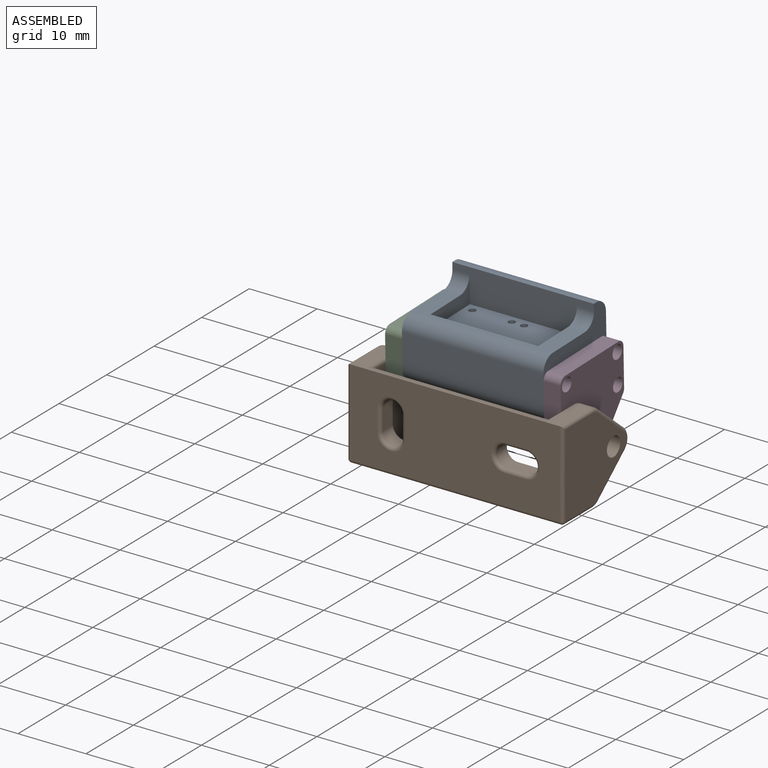
[diagram: assembled view]
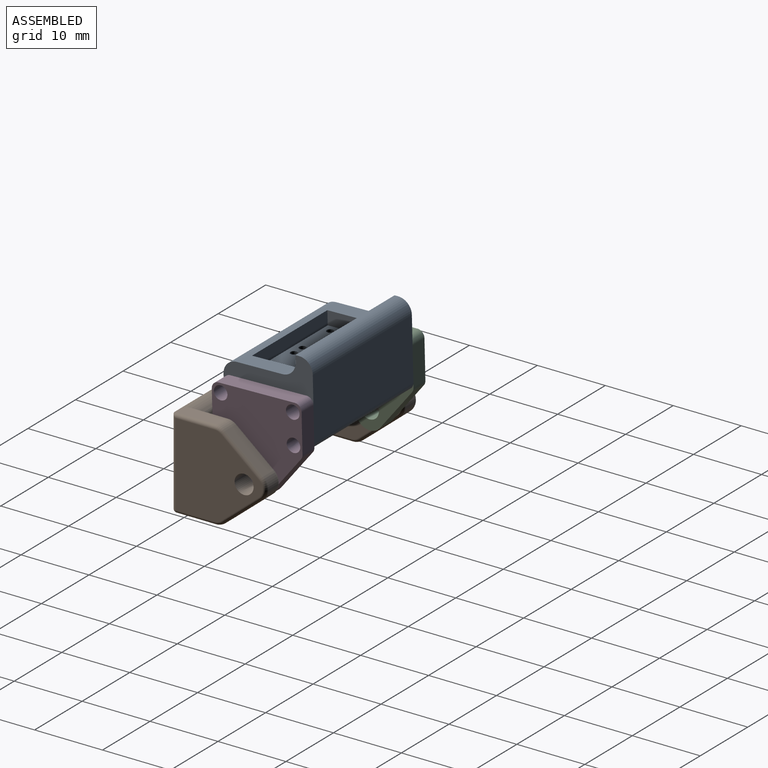
[diagram: assembled view, second angle]
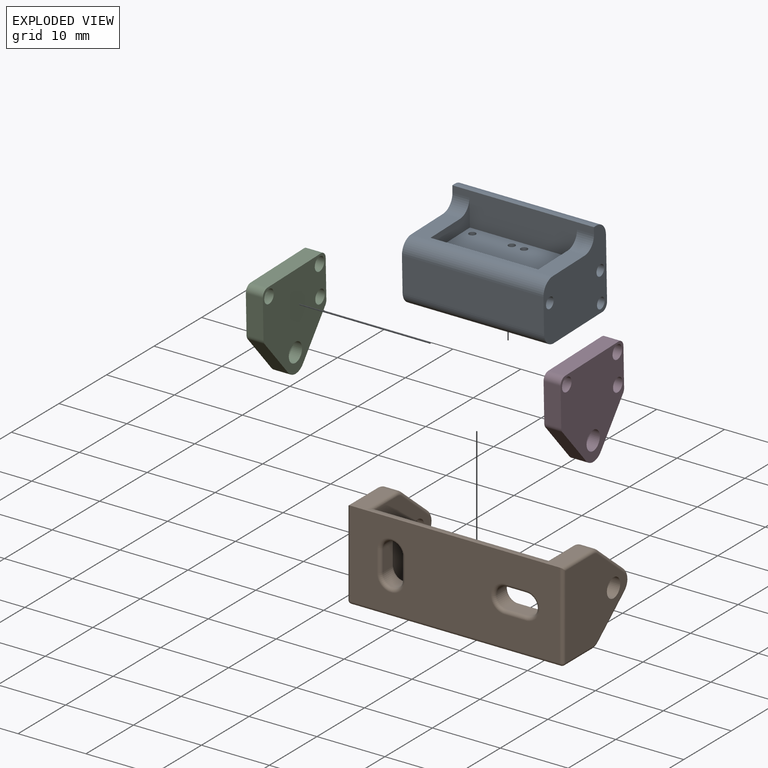
[diagram: exploded view]
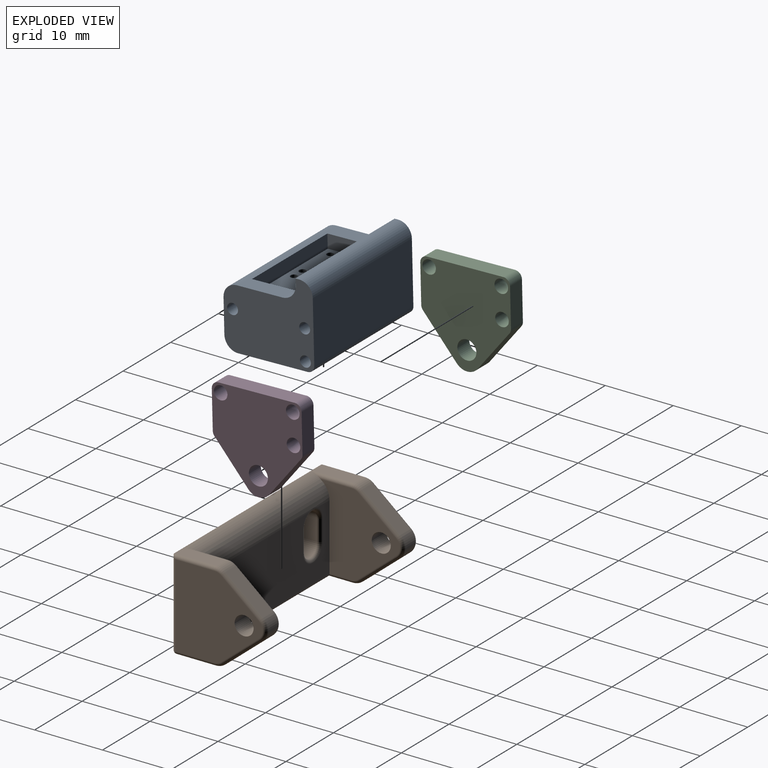
[diagram: exploded view, second angle]
ASSEMBLY  parts=4 mates=3
PART A: 43 faces, bbox 20.8x13.2x12 mm
  f0: plane 15.84x8.22mm, normal (0,0,1), area 123.9mm2, adj f4,f5,f6,f7,f8,f9,f10,f12
  f1: plane 13.22x12mm, normal (-1,0,0), area 118.5mm2, adj f2,f11,f17,f18,f19,f24,f25,f27
  f2: plane 20.84x5mm, normal (0,-1,0), area 104.2mm2, adj f1,f3,f37,f39
  f3: plane 13.22x12mm, normal (1,0,0), area 118.5mm2, adj f2,f11,f17,f18,f19,f24,f31,f33
  f4: cylinder r=0.5mm len=1mm, axis (0,0,-1), area 3.1mm2, adj f0,f13
  f5: cylinder r=0.5mm len=1mm, axis (0,0,-1), area 3.1mm2, adj f0,f13
  f6: cylinder r=0.5mm len=1mm, axis (0,0,-1), area 3.1mm2, adj f0,f13
  f7: cylinder r=0.5mm len=1mm, axis (0,0,-1), area 3.1mm2, adj f0,f13
  f8: cylinder r=0.5mm len=1mm, axis (0,0,-1), area 3.1mm2, adj f0,f13
  f9: cylinder r=0.5mm len=1mm, axis (0,0,-1), area 3.1mm2, adj f0,f13
  f10: cylinder r=0.5mm len=1mm, axis (0,0,-1), area 3.1mm2, adj f0,f13
  f11: plane 20.84x9mm, normal (0,1,0), area 187.6mm2, adj f1,f3,f38,f42
  f12: cylinder r=0.5mm len=1mm, axis (0,0,-1), area 3.1mm2, adj f0,f13
  f13: plane 15.84x8.22mm, normal (0,0,-1), area 123.9mm2, adj f4,f5,f6,f7,f8,f9,f10,f12
  f14: plane 8.22x4mm, normal (1,0,0), area 17.3mm2, adj f0,f16,f17,f18,f41
  f15: plane 8.22x4mm, normal (-1,0,0), area 17.3mm2, adj f0,f16,f17,f18,f40
  f16: plane 15.84x2mm, normal (0,1,0), area 31.7mm2, adj f0,f14,f15,f17
  f17: plane 20.84x6.72mm, normal (0,0,1), area 41.5mm2, adj f1,f3,f14,f15,f16,f39,f40,f41
  f18: plane 20.84x5mm, normal (0,-1,0), area 84.2mm2, adj f0,f1,f3,f14,f15,f19,f40,f41
  f19: plane 20.84x0.5mm, normal (0,0,1), area 10.4mm2, adj f1,f3,f18,f38
  f20: plane 15.84x6mm, normal (0,1,0), area 95mm2, adj f13,f21,f23,f24
  f21: plane 8.22x6mm, normal (1,0,0), area 49.3mm2, adj f13,f20,f22,f24
  f22: plane 15.84x6mm, normal (0,-1,0), area 95mm2, adj f13,f21,f23,f24
  f23: plane 8.22x6mm, normal (-1,0,0), area 49.3mm2, adj f13,f20,f22,f24
  f24: plane 20.84x10.22mm, normal (0,0,-1), area 82.8mm2, adj f1,f3,f20,f21,f22,f23,f37,f42
  f25: cylinder r=0.8mm len=8mm, axis (-1,0,0), area 40.2mm2, adj f1,f26
  f26: plane 1.6x1.6mm, normal (-1,0,0), area 2mm2, adj f25
  f27: cylinder r=0.8mm len=8mm, axis (-1,0,0), area 40.2mm2, adj f1,f28
  f28: plane 1.6x1.6mm, normal (-1,0,0), area 2mm2, adj f27
  f29: cylinder r=0.8mm len=8mm, axis (-1,0,0), area 40.2mm2, adj f1,f30
  f30: plane 1.6x1.6mm, normal (-1,0,0), area 2mm2, adj f29
  f31: cylinder r=0.8mm len=8mm, axis (1,0,0), area 40.2mm2, adj f3,f32
  f32: plane 1.6x1.6mm, normal (1,0,0), area 2mm2, adj f31
  f33: cylinder r=0.8mm len=8mm, axis (1,0,0), area 40.2mm2, adj f3,f34
  f34: plane 1.6x1.6mm, normal (1,0,0), area 2mm2, adj f33
  f35: cylinder r=0.8mm len=8mm, axis (1,0,0), area 40.2mm2, adj f3,f36
  f36: plane 1.6x1.6mm, normal (1,0,0), area 2mm2, adj f35
  f37: cylinder r=2mm len=20.84mm, axis (1,0,0), area 65.5mm2, adj f1,f2,f3,f24
  f38: cylinder r=2mm len=20.84mm, axis (1,0,0), area 65.5mm2, adj f1,f3,f11,f19
  f39: cylinder r=2mm len=20.84mm, axis (-1,0,0), area 65.5mm2, adj f1,f2,f3,f17
  f40: cylinder r=2mm len=2.5mm, axis (1,0,0), area 7.9mm2, adj f3,f15,f17,f18
  f41: cylinder r=2mm len=2.5mm, axis (1,0,0), area 7.9mm2, adj f1,f14,f17,f18
  f42: cylinder r=1mm len=20.84mm, axis (-1,0,0), area 32.7mm2, adj f1,f3,f11,f24
PART B: 82 faces, bbox 31.8x14x13.5 mm
  f0: plane 6.28x2mm, normal (0,0,1), area 12.6mm2, adj f3,f20,f22,f42
  f1: plane 12.22x11.7mm, normal (1,0,0), area 85.9mm2, adj f7,f14,f21,f22,f23,f24,f25,f26
  f2: plane 30.84x5.78mm, normal (0,0,-1), area 76.8mm2, adj f15,f19,f28,f29,f30,f43,f48,f49
  f3: plane 30.84x12.72mm, normal (0,-1,0), area 340.5mm2, adj f0,f4,f21,f44,f49,f53,f64,f65
  f4: plane 6.28x2mm, normal (0,0,1), area 12.6mm2, adj f3,f17,f36,f55
  f5: plane 5.58x4.61mm, normal (0,0.64,0.77), area 14.5mm2, adj f18,f20,f24,f38
  f6: plane 5.58x4.61mm, normal (0,0.64,-0.77), area 14.5mm2, adj f18,f19,f26,f39
  f7: cylinder r=1.4mm len=3mm, axis (1,0,0), area 26.4mm2, adj f1,f8
  f8: plane 12.86x12.22mm, normal (-1,0,0), area 115.4mm2, adj f7,f37,f38,f39,f40,f41,f42,f43
  f9: plane 12.22x11.7mm, normal (-1,0,0), area 85.9mm2, adj f12,f14,f21,f30,f31,f32,f33,f34
  f10: plane 5.58x4.61mm, normal (0,0.64,-0.77), area 14.5mm2, adj f15,f16,f32,f47
  f11: plane 5.58x4.61mm, normal (0,0.64,0.77), area 14.5mm2, adj f16,f17,f34,f52
  f12: cylinder r=1.4mm len=3mm, axis (-1,0,0), area 26.4mm2, adj f9,f13
  f13: plane 12.86x12.22mm, normal (1,0,0), area 115.4mm2, adj f12,f45,f47,f48,f50,f52,f53,f54
  f14: plane 25.84x9.72mm, normal (0,1,0), area 199.7mm2, adj f1,f9,f21,f29,f68,f69,f70,f71
  f15: cylinder r=2mm len=2mm, axis (-1,0,0), area 2.8mm2, adj f2,f10,f31,f45
  f16: cylinder r=2mm len=3.08mm, axis (1,0,0), area 7mm2, adj f10,f11,f33,f50
  f17: cylinder r=2mm len=2mm, axis (-1,0,0), area 2.8mm2, adj f4,f11,f35,f54
  f18: cylinder r=2mm len=3.08mm, axis (-1,0,0), area 7mm2, adj f5,f6,f25,f37
  f19: cylinder r=2mm len=2mm, axis (-1,0,0), area 2.8mm2, adj f2,f6,f27,f41
  f20: cylinder r=2mm len=2mm, axis (-1,0,0), area 2.8mm2, adj f0,f5,f23,f40
  f21: cylinder r=3mm len=26.84mm, axis (-1,0,0), area 122.3mm2, adj f1,f3,f9,f14,f22,f36,f72
  f22: cylinder r=0.5mm len=6.28mm, axis (0,1,0), area 4.3mm2, adj f0,f1,f21,f23
  f23: torus R=1.5mm, axis (-1,0,0), area 1mm2, adj f1,f20,f22,f24
  f24: cylinder r=0.5mm len=5.9mm, axis (0,0.77,-0.64), area 5.7mm2, adj f1,f5,f23,f25
  f25: torus R=1.5mm, axis (-1,0,0), area 2.5mm2, adj f1,f18,f24,f26
  f26: cylinder r=0.5mm len=5.9mm, axis (0,-0.77,-0.64), area 5.7mm2, adj f1,f6,f25,f27
  f27: torus R=1.5mm, axis (-1,0,0), area 1mm2, adj f1,f19,f26,f28
  f28: cylinder r=0.5mm len=3.78mm, axis (0,-1,0), area 2.7mm2, adj f1,f2,f27,f29
  f29: cylinder r=0.5mm len=26.84mm, axis (1,0,0), area 20.6mm2, adj f2,f14,f28,f30
  f30: cylinder r=0.5mm len=3.78mm, axis (0,-1,0), area 2.7mm2, adj f2,f9,f29,f31
  f31: torus R=1.5mm, axis (1,0,0), area 1mm2, adj f9,f15,f30,f32
  f32: cylinder r=0.5mm len=5.9mm, axis (0,0.77,0.64), area 5.7mm2, adj f9,f10,f31,f33
  f33: torus R=1.5mm, axis (1,0,0), area 2.5mm2, adj f9,f16,f32,f34
  f34: cylinder r=0.5mm len=5.9mm, axis (0,-0.77,0.64), area 5.7mm2, adj f9,f11,f33,f35
  f35: torus R=1.5mm, axis (1,0,0), area 1mm2, adj f9,f17,f34,f36
  f36: cylinder r=0.5mm len=6.28mm, axis (0,1,0), area 4.3mm2, adj f4,f9,f21,f35
  f37: torus R=1.5mm, axis (-1,0,0), area 2.5mm2, adj f8,f18,f38,f39
  f38: cylinder r=0.5mm len=5.9mm, axis (0,-0.77,0.64), area 5.7mm2, adj f5,f8,f37,f40
  f39: cylinder r=0.5mm len=5.9mm, axis (0,0.77,0.64), area 5.7mm2, adj f6,f8,f37,f41
  f40: torus R=1.5mm, axis (-1,0,0), area 1mm2, adj f8,f20,f38,f42
  f41: torus R=1.5mm, axis (-1,0,0), area 1mm2, adj f8,f19,f39,f43
  f42: cylinder r=0.5mm len=6.28mm, axis (0,-1,0), area 4.8mm2, adj f0,f8,f40,f44
  f43: cylinder r=0.5mm len=5.78mm, axis (0,1,0), area 4.5mm2, adj f2,f8,f41,f46
  f44: cylinder r=0.5mm len=12.72mm, axis (0,0,-1), area 9.8mm2, adj f3,f8,f42,f46
  f45: torus R=1.5mm, axis (1,0,0), area 1mm2, adj f13,f15,f47,f48
  f46: sphere r=0.5mm, area 0.4mm2, adj f43,f44,f49
  f47: cylinder r=0.5mm len=5.9mm, axis (0,-0.77,-0.64), area 5.7mm2, adj f10,f13,f45,f50
  f48: cylinder r=0.5mm len=5.78mm, axis (0,1,0), area 4.5mm2, adj f2,f13,f45,f51
  f49: cylinder r=0.5mm len=30.84mm, axis (-1,0,0), area 24.2mm2, adj f2,f3,f46,f51
  f50: torus R=1.5mm, axis (1,0,0), area 2.5mm2, adj f13,f16,f47,f52
  f51: sphere r=0.5mm, area 0.4mm2, adj f48,f49,f53
  f52: cylinder r=0.5mm len=5.9mm, axis (0,0.77,-0.64), area 5.7mm2, adj f11,f13,f50,f54
  f53: cylinder r=0.5mm len=12.72mm, axis (0,0,-1), area 9.8mm2, adj f3,f13,f51,f55
  f54: torus R=1.5mm, axis (1,0,0), area 1mm2, adj f13,f17,f52,f55
  f55: cylinder r=0.5mm len=6.28mm, axis (0,-1,0), area 4.8mm2, adj f4,f13,f53,f54
  f56: cylinder r=1.55mm len=3.1mm, axis (0,-1,0), area 9.7mm2, adj f57,f59,f64,f70,f72,f73
  f57: plane 3.1x2mm, normal (1,0,0), area 6.2mm2, adj f56,f58,f65,f68
  f58: cylinder r=1.55mm len=3.1mm, axis (0,-1,0), area 9.7mm2, adj f57,f59,f67,f69
  f59: plane 3.1x2mm, normal (-1,0,0), area 6.2mm2, adj f56,f58,f66,f71
  f60: cylinder r=1.55mm len=3.1mm, axis (0,-1,0), area 9.7mm2, adj f61,f63,f77,f81
  f61: plane 3.1x2mm, normal (0,0,-1), area 6.2mm2, adj f60,f62,f76,f80
  f62: cylinder r=1.55mm len=3.1mm, axis (0,-1,0), area 9.7mm2, adj f61,f63,f74,f78
  f63: plane 3.1x2mm, normal (0,0,1), area 6.2mm2, adj f60,f62,f75,f79
  f64: torus R=2.05mm, axis (0,1,0), area 4.3mm2, adj f3,f56,f65,f66
  f65: cylinder r=0.5mm len=3.1mm, axis (0,0,-1), area 2.4mm2, adj f3,f57,f64,f67
  f66: cylinder r=0.5mm len=3.1mm, axis (0,0,1), area 2.4mm2, adj f3,f59,f64,f67
  f67: torus R=2.05mm, axis (0,1,0), area 4.3mm2, adj f3,f58,f65,f66
  f68: cylinder r=0.5mm len=3.1mm, axis (0,0,-1), area 2.4mm2, adj f14,f57,f69,f70
  f69: torus R=2.05mm, axis (0,-1,0), area 4.3mm2, adj f14,f58,f68,f71
  f70: torus R=2.05mm, axis (0,-1,0), area 1.5mm2, adj f14,f56,f68,f72
  f71: cylinder r=0.5mm len=3.1mm, axis (0,0,1), area 2.4mm2, adj f14,f59,f69,f73
  f72: bspline ~2.63x0.93mm, area 1.4mm2, adj f21,f56,f70,f73
  f73: torus R=2.05mm, axis (0,-1,0), area 1.5mm2, adj f14,f56,f71,f72
  f74: torus R=2.05mm, axis (0,1,0), area 4.3mm2, adj f3,f62,f75,f76
  f75: cylinder r=0.5mm len=3.1mm, axis (1,0,0), area 2.4mm2, adj f3,f63,f74,f77
  f76: cylinder r=0.5mm len=3.1mm, axis (-1,0,0), area 2.4mm2, adj f3,f61,f74,f77
  f77: torus R=2.05mm, axis (0,1,0), area 4.3mm2, adj f3,f60,f75,f76
  f78: torus R=2.05mm, axis (0,-1,0), area 4.3mm2, adj f14,f62,f79,f80
  f79: cylinder r=0.5mm len=3.1mm, axis (1,0,0), area 2.4mm2, adj f14,f63,f78,f81
  f80: cylinder r=0.5mm len=3.1mm, axis (-1,0,0), area 2.4mm2, adj f14,f61,f78,f81
  f81: torus R=2.05mm, axis (0,-1,0), area 4.3mm2, adj f14,f60,f79,f80
PART C: 16 faces, bbox 2.5x13.2x13.9 mm
  f0: plane 5.86x4.84mm, normal (0,0.77,-0.64), area 19mm2, adj f9,f10,f11,f12
  f1: plane 5.86x4.84mm, normal (0,-0.77,-0.64), area 19mm2, adj f9,f10,f11,f13
  f2: plane 5.64x2.5mm, normal (0,-1,0), area 14.1mm2, adj f9,f10,f13,f14
  f3: plane 11.22x2.5mm, normal (0,0,1), area 28mm2, adj f9,f10,f14,f15
  f4: cylinder r=1mm len=2.5mm, axis (1,0,0), area 15.7mm2, adj f9,f10
  f5: cylinder r=1mm len=2.5mm, axis (1,0,0), area 15.7mm2, adj f9,f10
  f6: cylinder r=1.4mm len=2.8mm, axis (1,0,0), area 22mm2, adj f9,f10
  f7: plane 5.64x2.5mm, normal (0,1,0), area 14.1mm2, adj f9,f10,f12,f15
  f8: cylinder r=1mm len=2.5mm, axis (1,0,0), area 15.7mm2, adj f9,f10
  f9: plane 13.86x13.22mm, normal (-1,0,0), area 128.1mm2, adj f0,f1,f2,f3,f4,f5,f6,f7
  f10: plane 13.86x13.22mm, normal (1,0,0), area 128.1mm2, adj f0,f1,f2,f3,f4,f5,f6,f7
  f11: cylinder r=2mm len=3.08mm, axis (-1,0,0), area 8.8mm2, adj f0,f1,f9,f10
  f12: cylinder r=1mm len=2.5mm, axis (-1,0,0), area 1.7mm2, adj f0,f7,f9,f10
  f13: cylinder r=1mm len=2.5mm, axis (-1,0,0), area 1.7mm2, adj f1,f2,f9,f10
  f14: cylinder r=1mm len=2.5mm, axis (-1,0,0), area 3.9mm2, adj f2,f3,f9,f10
  f15: cylinder r=1mm len=2.5mm, axis (1,0,0), area 3.9mm2, adj f3,f7,f9,f10
PART D: 16 faces, bbox 2.5x13.2x13.9 mm
  f0: plane 11.22x2.5mm, normal (0,0,1), area 28mm2, adj f9,f10,f12,f15
  f1: plane 5.64x2.5mm, normal (0,-1,0), area 14.1mm2, adj f9,f10,f12,f13
  f2: plane 5.86x4.84mm, normal (0,-0.77,-0.64), area 19mm2, adj f9,f10,f11,f13
  f3: plane 5.86x4.84mm, normal (0,0.77,-0.64), area 19mm2, adj f9,f10,f11,f14
  f4: cylinder r=1mm len=2.5mm, axis (-1,0,0), area 15.7mm2, adj f9,f10
  f5: cylinder r=1mm len=2.5mm, axis (-1,0,0), area 15.7mm2, adj f9,f10
  f6: cylinder r=1mm len=2.5mm, axis (-1,0,0), area 15.7mm2, adj f9,f10
  f7: plane 5.64x2.5mm, normal (0,1,0), area 14.1mm2, adj f9,f10,f14,f15
  f8: cylinder r=1.4mm len=2.8mm, axis (-1,0,0), area 22mm2, adj f9,f10
  f9: plane 13.86x13.22mm, normal (1,0,0), area 128.1mm2, adj f0,f1,f2,f3,f4,f5,f6,f7
  f10: plane 13.86x13.22mm, normal (-1,0,0), area 128.1mm2, adj f0,f1,f2,f3,f4,f5,f6,f7
  f11: cylinder r=2mm len=3.08mm, axis (1,0,0), area 8.8mm2, adj f2,f3,f9,f10
  f12: cylinder r=1mm len=2.5mm, axis (1,0,0), area 3.9mm2, adj f0,f1,f9,f10
  f13: cylinder r=1mm len=2.5mm, axis (1,0,0), area 1.7mm2, adj f1,f2,f9,f10
  f14: cylinder r=1mm len=2.5mm, axis (1,0,0), area 1.7mm2, adj f3,f7,f9,f10
  f15: cylinder r=1mm len=2.5mm, axis (-1,0,0), area 3.9mm2, adj f0,f7,f9,f10
PLACE A rot(axis=(1,0,0),1.4deg) t=(-5.85,2.31,1.32)mm
PLACE B t=(-5.85,2.55,1.32)mm
PLACE C rot(axis=(1,0,0),1.4deg) t=(-5.85,2.31,1.32)mm
PLACE D rot(axis=(1,0,0),1.4deg) t=(-5.85,2.31,1.32)mm
MATE fastened A.f27 <-> C.f5  axis (-1,0,0) through (-12.46,7.74,-3.25)mm
MATE revolute C.f6 <-> B.f7  axis (-1,0,0) through (-14.96,2.56,-8.68)mm
MATE fastened A.f27 <-> D.f4  axis (1,0,0) through (8.38,7.74,-3.25)mm
